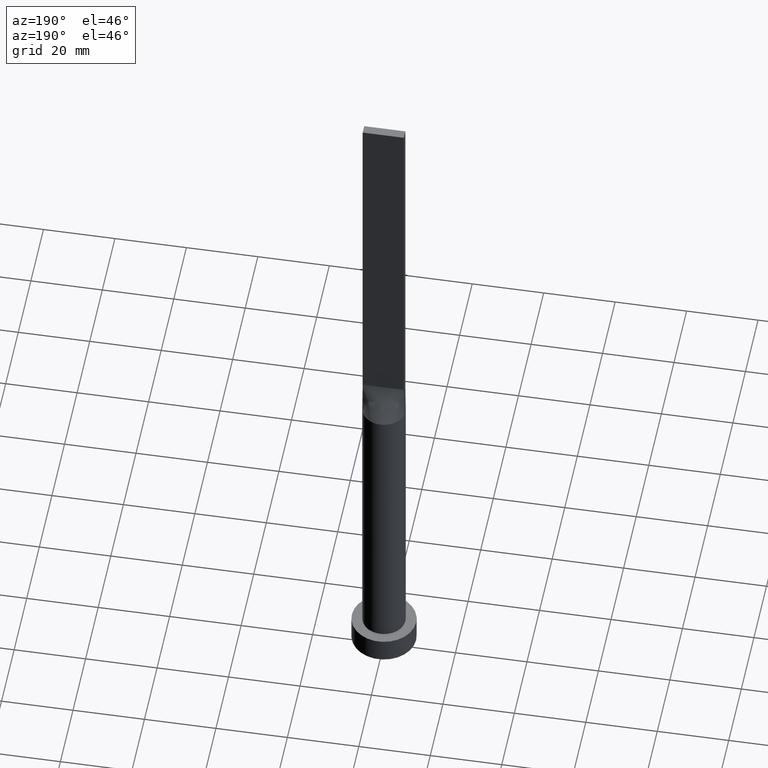
[diagram: clean part render]
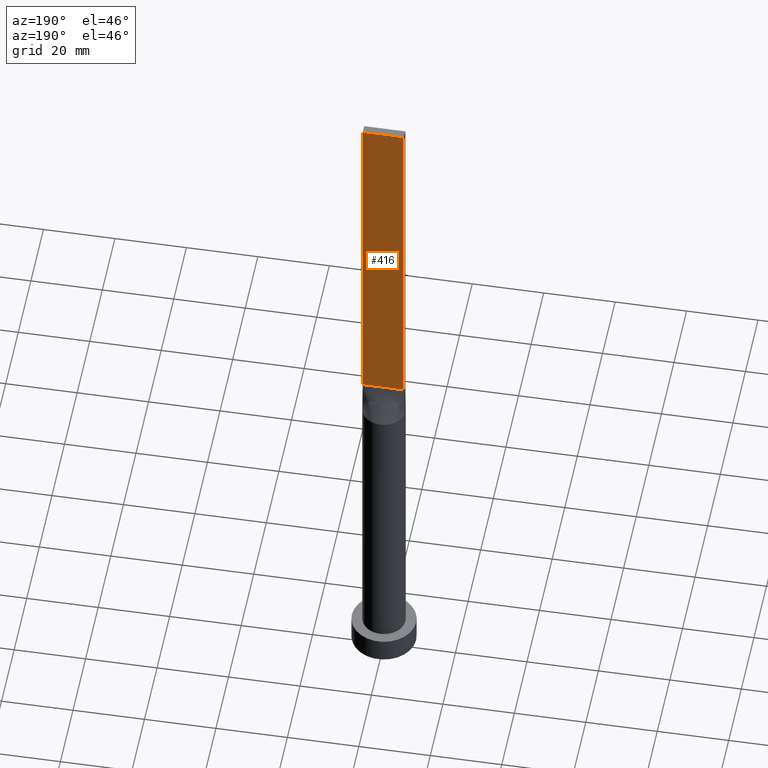
[diagram: same view with one face highlighted and labeled with its STEP entity id]
A machine part, auxiliary view. The second image highlights one B-rep face of the part: STEP entity #416.
In plain terms, the highlighted planar face has unit normal (0, -1, 0).
Its self-contained STEP definition (entity closure, byte-faithful):
#23 = VERTEX_POINT ( 'NONE', #549 ) ;
#49 = EDGE_CURVE ( 'NONE', #442, #207, #463, .T. ) ;
#58 = DIRECTION ( 'NONE',  ( 0.000000000000000000, -0.000000000000000000, -1.000000000000000000 ) ) ;
#63 = CARTESIAN_POINT ( 'NONE',  ( -5.750000000000000000, 1.250000000000000222, 100.0000000000000000 ) ) ;
#64 = VECTOR ( 'NONE', #387, 1000.000000000000000 ) ;
#70 = EDGE_CURVE ( 'NONE', #207, #23, #493, .T. ) ;
#107 = CARTESIAN_POINT ( 'NONE',  ( 5.750000000000000000, 1.250000000000000222, 200.0000000000000000 ) ) ;
#154 = PLANE ( 'NONE',  #220 ) ;
#185 = VECTOR ( 'NONE', #579, 1000.000000000000000 ) ;
#194 = ORIENTED_EDGE ( 'NONE', *, *, #49, .F. ) ;
#204 = CARTESIAN_POINT ( 'NONE',  ( 5.750000000000000000, 1.250000000000000222, 200.0000000000000000 ) ) ;
#207 = VERTEX_POINT ( 'NONE', #594 ) ;
#220 = AXIS2_PLACEMENT_3D ( 'NONE', #107, #292, #58 ) ;
#232 = CARTESIAN_POINT ( 'NONE',  ( -5.750000000000000000, 1.250000000000000222, 200.0000000000000000 ) ) ;
#260 = LINE ( 'NONE', #63, #185 ) ;
#271 = ORIENTED_EDGE ( 'NONE', *, *, #345, .T. ) ;
#275 = EDGE_LOOP ( 'NONE', ( #271, #326, #194, #328 ) ) ;
#292 = DIRECTION ( 'NONE',  ( 0.000000000000000000, -1.000000000000000000, 0.000000000000000000 ) ) ;
#306 = EDGE_CURVE ( 'NONE', #442, #309, #479, .T. ) ;
#309 = VERTEX_POINT ( 'NONE', #575 ) ;
#311 = CARTESIAN_POINT ( 'NONE',  ( 5.750000000000000000, 1.250000000000000222, 200.0000000000000000 ) ) ;
#326 = ORIENTED_EDGE ( 'NONE', *, *, #70, .F. ) ;
#328 = ORIENTED_EDGE ( 'NONE', *, *, #306, .T. ) ;
#345 = EDGE_CURVE ( 'NONE', #309, #23, #260, .T. ) ;
#387 = DIRECTION ( 'NONE',  ( -0.000000000000000000, -0.000000000000000000, -1.000000000000000000 ) ) ;
#416 = ADVANCED_FACE ( 'NONE', ( #566 ), #154, .F. ) ;
#442 = VERTEX_POINT ( 'NONE', #598 ) ;
#455 = DIRECTION ( 'NONE',  ( -1.000000000000000000, 0.000000000000000000, 0.000000000000000000 ) ) ;
#463 = LINE ( 'NONE', #311, #465 ) ;
#465 = VECTOR ( 'NONE', #455, 1000.000000000000000 ) ;
#479 = LINE ( 'NONE', #204, #64 ) ;
#493 = LINE ( 'NONE', #232, #537 ) ;
#537 = VECTOR ( 'NONE', #596, 1000.000000000000000 ) ;
#549 = CARTESIAN_POINT ( 'NONE',  ( -5.750000000000000000, 1.250000000000000222, 100.0000000000000000 ) ) ;
#566 = FACE_OUTER_BOUND ( 'NONE', #275, .T. ) ;
#575 = CARTESIAN_POINT ( 'NONE',  ( 5.750000000000000000, 1.250000000000000222, 100.0000000000000000 ) ) ;
#579 = DIRECTION ( 'NONE',  ( -1.000000000000000000, -0.000000000000000000, -0.000000000000000000 ) ) ;
#594 = CARTESIAN_POINT ( 'NONE',  ( -5.750000000000000000, 1.250000000000000222, 200.0000000000000000 ) ) ;
#596 = DIRECTION ( 'NONE',  ( -0.000000000000000000, -0.000000000000000000, -1.000000000000000000 ) ) ;
#598 = CARTESIAN_POINT ( 'NONE',  ( 5.750000000000000000, 1.250000000000000222, 200.0000000000000000 ) ) ;